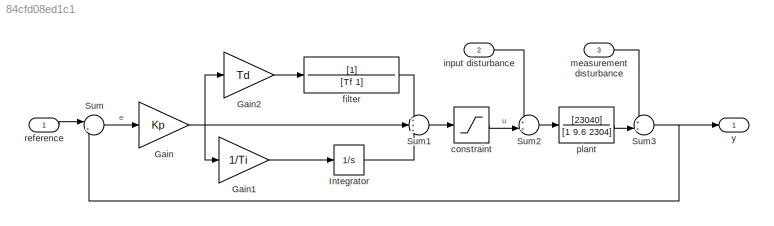
MODEL slx_84cfd08ed1c1
KIND model
CONFIG AbsTol = 1e-4
CONFIG EnableMultiTasking = off
CONFIG FixedStep = 1e-2
CONFIG MaxStep = auto
CONFIG MinStep = auto
CONFIG RelTol = 1e-4
CONFIG SampleTimeConstraint = Unconstrained
CONFIG SolverName = ode45
CONFIG StartTime = 0.0
CONFIG StopTime = 10.0
BLOCK [Gain] Gain
  Gain = Kp
BLOCK [Gain] Gain1
  Gain = 1/Ti
BLOCK [Gain] Gain2
  Gain = Td
BLOCK [Integrator] Integrator
  LimitOutput = on
BLOCK [Sum] Sum
  Inputs = |+-
BLOCK [Sum] Sum1
  Inputs = +++
BLOCK [Sum] Sum2
  Inputs = ++|
BLOCK [Sum] Sum3
  Inputs = ++|
BLOCK [Saturate] constraint
  LowerLimit = -4
  UpperLimit = 4
BLOCK [TransferFcn] filter
  Denominator = [Tf 1]
BLOCK [Inport] input disturbance
  Port = 2
BLOCK [Inport] measurement disturbance
  Port = 3
BLOCK [TransferFcn] plant
  Denominator = [1 9.6 2304]
  Numerator = [23040]
BLOCK [Inport] reference
BLOCK [Outport] y
LINE Gain1:1 -> Integrator:1
LINE Gain2:1 -> filter:1
NET Gain:1 -> Gain1:1, Gain2:1, Sum1:2
LINE Integrator:1 -> Sum1:3
LINE Sum1:1 -> constraint:1
LINE Sum2:1 -> plant:1
NET Sum3:1 -> Sum:2, y:1
LINE Sum:1 -> Gain:1
LINE constraint:1 -> Sum2:2
LINE filter:1 -> Sum1:1
LINE input disturbance:1 -> Sum2:1
LINE measurement disturbance:1 -> Sum3:1
LINE plant:1 -> Sum3:2
LINE reference:1 -> Sum:1
note: NET lines group one-source signal fan-out (src -> all destinations, sorted); 1:1 wires keep LINE
